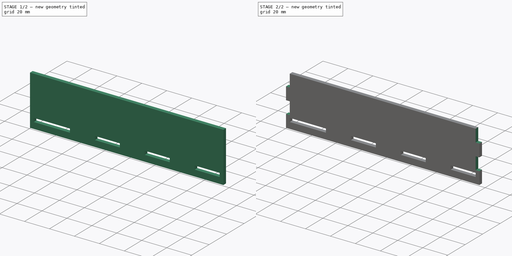
[diagram: build sequence overview — one tinted view per stage of 2, left to right]
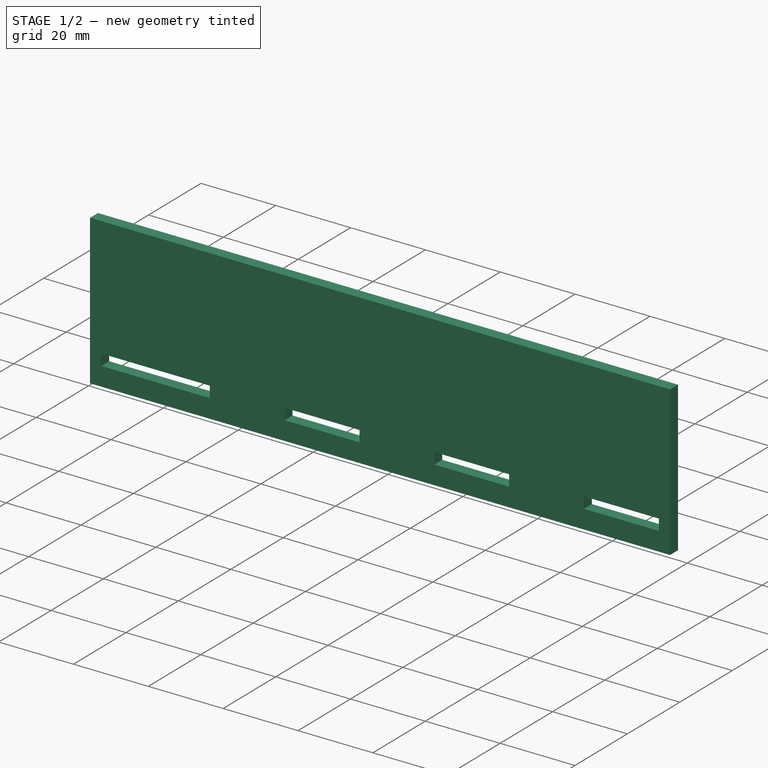
[diagram: stage 1 of 2 — iso view after this stage's code; geometry added in this stage tinted green]
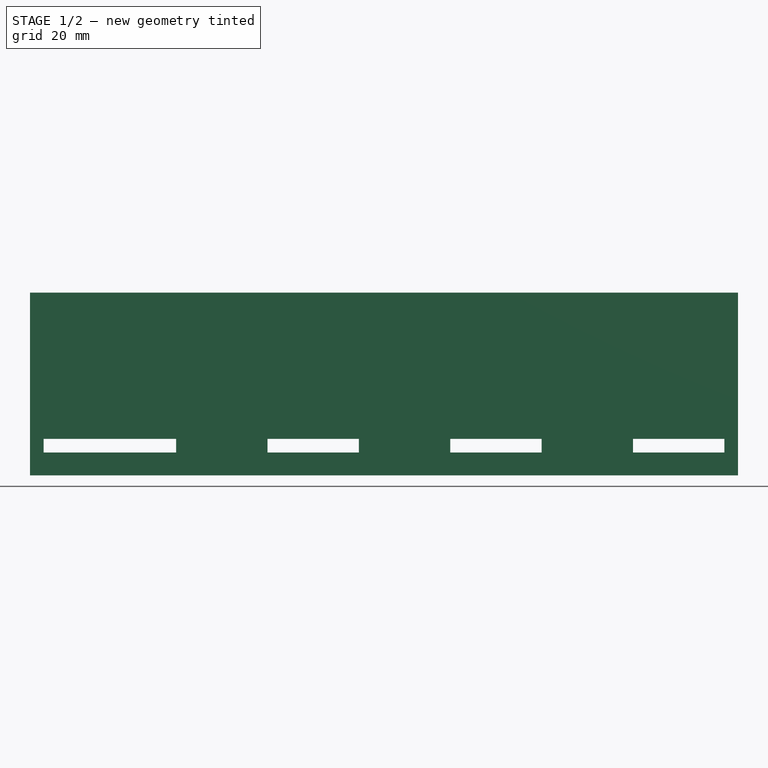
[diagram: stage 1 of 2 — front view after this stage's code; geometry added in this stage tinted green]
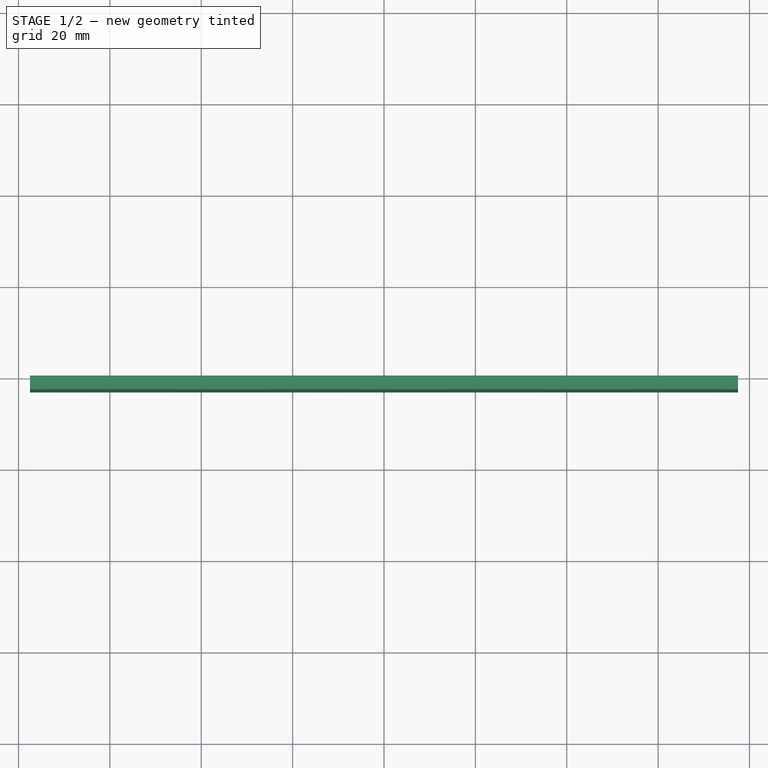
[diagram: stage 1 of 2 — top view after this stage's code; geometry added in this stage tinted green]
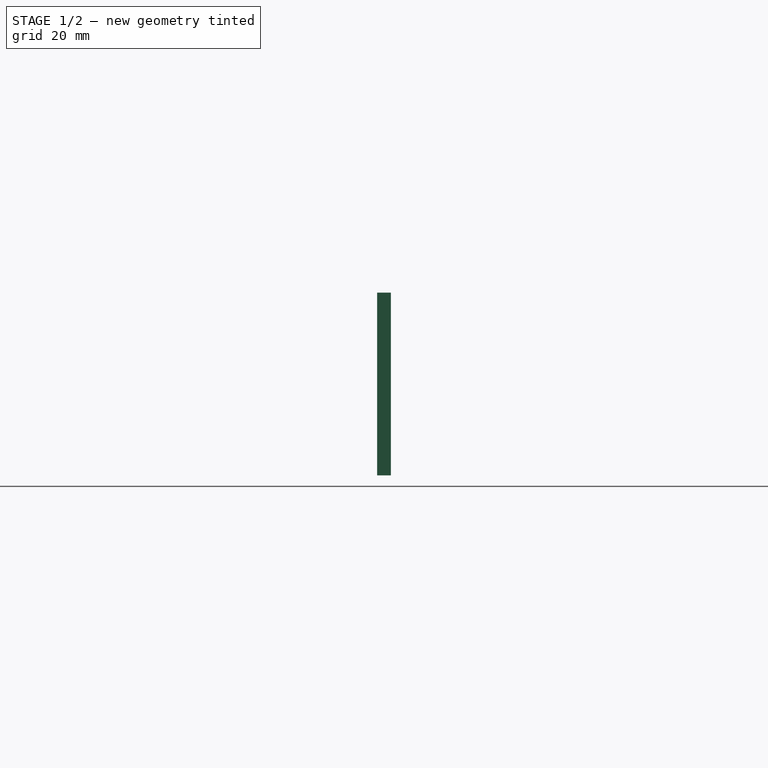
[diagram: stage 1 of 2 — right view after this stage's code; geometry added in this stage tinted green]
FCSTD DOCUMENT  (FreeCAD 0.19R24267 +148 (Git))
Label: BackDrawer
License: All rights reserved
LicenseURL: http://en.wikipedia.org/wiki/All_rights_reserved
objects: Sketcher::SketchObject×3, PartDesign::Pocket×2, PartDesign::Pad×1, PartDesign::Mirrored×1, PartDesign::Body×1
note: 11 computed .brp shape members not serialized (recipe doc carries the construction recipe); baked Part::Feature solids carry a one-line shape summary decoded from their .brp

FEATURE [Sketcher::SketchObject] Sketch
  FullyConstrained = true
  MapMode = 5
  Placement = pos=(0,0,0) rot=(1,0,0;1.5708rad)
  Support = -> [XZ_Plane]
  sketch-geometry (4):
    g0: LineSegment StartX=-77.5 StartY=-20 StartZ=0 EndX=77.5 EndY=-20 EndZ=0
    g1: LineSegment StartX=77.5 StartY=-20 StartZ=0 EndX=77.5 EndY=20 EndZ=0
    g2: LineSegment StartX=77.5 StartY=20 StartZ=0 EndX=-77.5 EndY=20 EndZ=0
    g3: LineSegment StartX=-77.5 StartY=20 StartZ=0 EndX=-77.5 EndY=-20 EndZ=0
  constraints (10):
    c: Coincident(g0,g1)
    c: Coincident(g1,g2)
    c: Coincident(g2,g3)
    c: Coincident(g3,g0)
    c: Horizontal(g0)
    c: Vertical(g3)
    c: Symmetric(g1,g2,g-2)
    c: Symmetric(g0,g1,g-1)
    c: Distance(g1) = 40
    c: DistanceX(g2,g2) = 155
FEATURE [PartDesign::Pad] Pad
  Direction = (1,1,1)
  Length = 3
  Length2 = 100
  Placement = pos=(0,0,0) rot=(1,0,0;1.5708rad)
  Profile = -> Sketch
  Refine = true
  Type = 0
FEATURE [Sketcher::SketchObject] Sketch001
  ExternalGeometry = -> [Pad]
  FullyConstrained = true
  MapMode = 5
  Placement = pos=(0,-3,2e-15) rot=(1,0,0;1.5708rad)
  Support = -> [Pad]
  sketch-geometry (18):
    g0: LineSegment StartX=54.5 StartY=-15 StartZ=0 EndX=74.5 EndY=-15 EndZ=0
    g1: LineSegment StartX=74.5 StartY=-15 StartZ=0 EndX=74.5 EndY=-12 EndZ=0
    g2: LineSegment StartX=74.5 StartY=-12 StartZ=0 EndX=54.5 EndY=-12 EndZ=0
    g3: LineSegment StartX=54.5 StartY=-12 StartZ=0 EndX=54.5 EndY=-15 EndZ=0
    g4: LineSegment StartX=14.5 StartY=-15 StartZ=0 EndX=34.5 EndY=-15 EndZ=0
    g5: LineSegment StartX=34.5 StartY=-15 StartZ=0 EndX=34.5 EndY=-12 EndZ=0
    g6: LineSegment StartX=34.5 StartY=-12 StartZ=0 EndX=14.5 EndY=-12 EndZ=0
    g7: LineSegment StartX=14.5 StartY=-12 StartZ=0 EndX=14.5 EndY=-15 EndZ=0
    g8: LineSegment StartX=54.5 StartY=-15 StartZ=0 EndX=14.5 EndY=-15 EndZ=0
    g9: LineSegment StartX=-25.5 StartY=-15 StartZ=0 EndX=-5.5 EndY=-15 EndZ=0
    g10: LineSegment StartX=-5.5 StartY=-15 StartZ=0 EndX=-5.5 EndY=-12 EndZ=0
    g11: LineSegment StartX=-5.5 StartY=-12 StartZ=0 EndX=-25.5 EndY=-12 EndZ=0
    g12: LineSegment StartX=-25.5 StartY=-12 StartZ=0 EndX=-25.5 EndY=-15 EndZ=0
    g13: LineSegment StartX=14.5 StartY=-15 StartZ=0 EndX=-25.5 EndY=-15 EndZ=0
    g14: LineSegment StartX=-74.5 StartY=-15 StartZ=0 EndX=-45.5 EndY=-15 EndZ=0
    g15: LineSegment StartX=-45.5 StartY=-15 StartZ=0 EndX=-45.5 EndY=-12 EndZ=0
    g16: LineSegment StartX=-45.5 StartY=-12 StartZ=0 EndX=-74.5 EndY=-12 EndZ=0
    g17: LineSegment StartX=-74.5 StartY=-12 StartZ=0 EndX=-74.5 EndY=-15 EndZ=0
  constraints (52):
    c: Coincident(g0,g1)
    c: Coincident(g1,g2)
    c: Coincident(g2,g3)
    c: Coincident(g3,g0)
    c: Horizontal(g0)
    c: Horizontal(g2)
    c: Vertical(g1)
    c: Vertical(g3)
    c: Distance(g2) = 20
    c: DistanceY(g3,g3) = 3
    c: DistanceY(g-3,g0) = 5
    c: DistanceX(g0,g-3) = 3
    c: Coincident(g4,g5)
    c: Coincident(g5,g6)
    c: Coincident(g6,g7)
    c: Coincident(g7,g4)
    c: Horizontal(g4)
    c: Horizontal(g6)
    c: Vertical(g5)
    c: Vertical(g7)
    c: Equal(g2,g6) = 20
    c: Equal(g3,g7) = 3
    c: Coincident(g0,g8)
    c: Coincident(g4,g8)
    c: Distance(g8) = 40
    c: Coincident(g9,g10)
    c: Coincident(g10,g11)
    c: Coincident(g11,g12)
    c: Coincident(g12,g9)
    c: Horizontal(g9)
    c: Horizontal(g11)
    c: Vertical(g10)
    c: Vertical(g12)
    c: Equal(g2,g11) = 20
    c: Equal(g3,g12) = 3
    c: Coincident(g4,g13)
    c: Coincident(g9,g13)
    c: Equal(g8,g13)
    c: Parallel(g13,g8)
    c: Horizontal(g8)
    c: Coincident(g14,g15)
    c: Coincident(g15,g16)
    c: Coincident(g16,g17)
    c: Coincident(g17,g14)
    c: Horizontal(g14)
    c: Horizontal(g16)
    c: Vertical(g15)
    c: Vertical(g17)
    c: Equal(g15,g10)
    c: PointOnObject(g14,g13)
    c: DistanceX(g16,g16) = 29
    c: DistanceX(g14,g9) = 40
FEATURE [PartDesign::Pocket] Pocket  label="BottomCrenel"
  BaseFeature = -> Pad
  Length = 5
  Length2 = 100
  Placement = pos=(0,0,0) rot=(1,0,0;1.5708rad)
  Profile = -> Sketch001
  Refine = true
  Type = 1
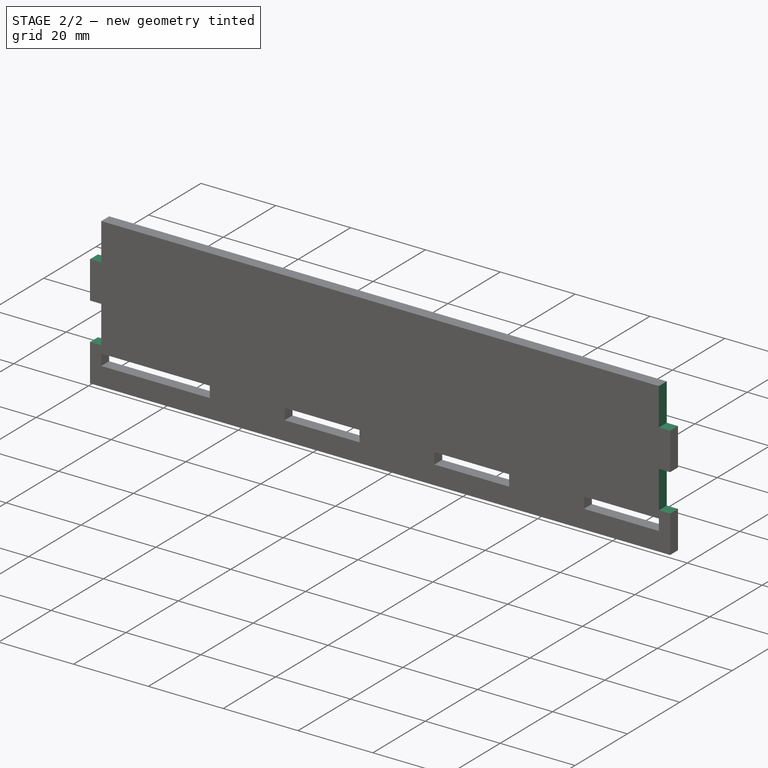
[diagram: stage 2 of 2 — iso view after this stage's code; geometry added in this stage tinted green]
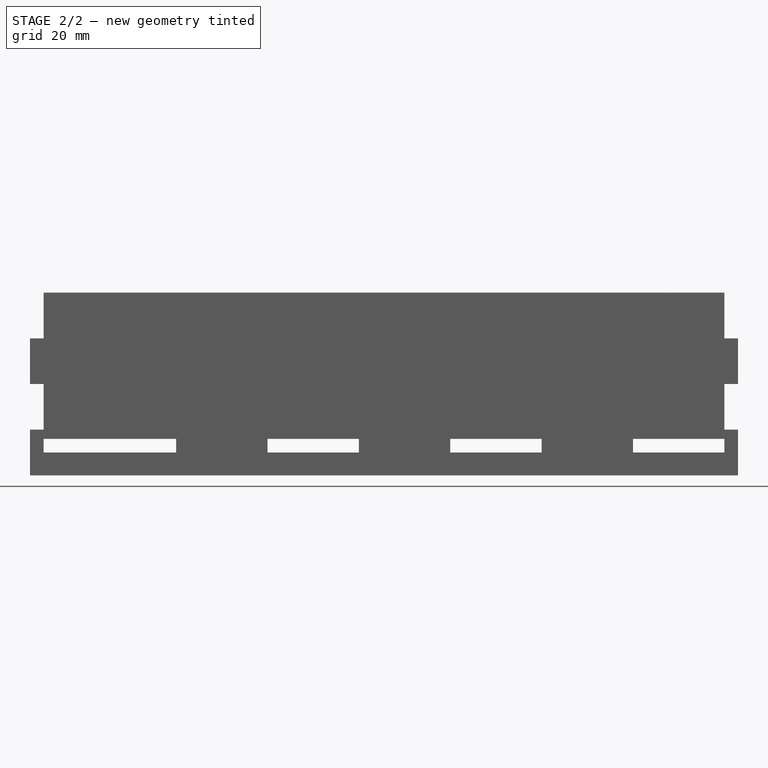
[diagram: stage 2 of 2 — front view after this stage's code; geometry added in this stage tinted green]
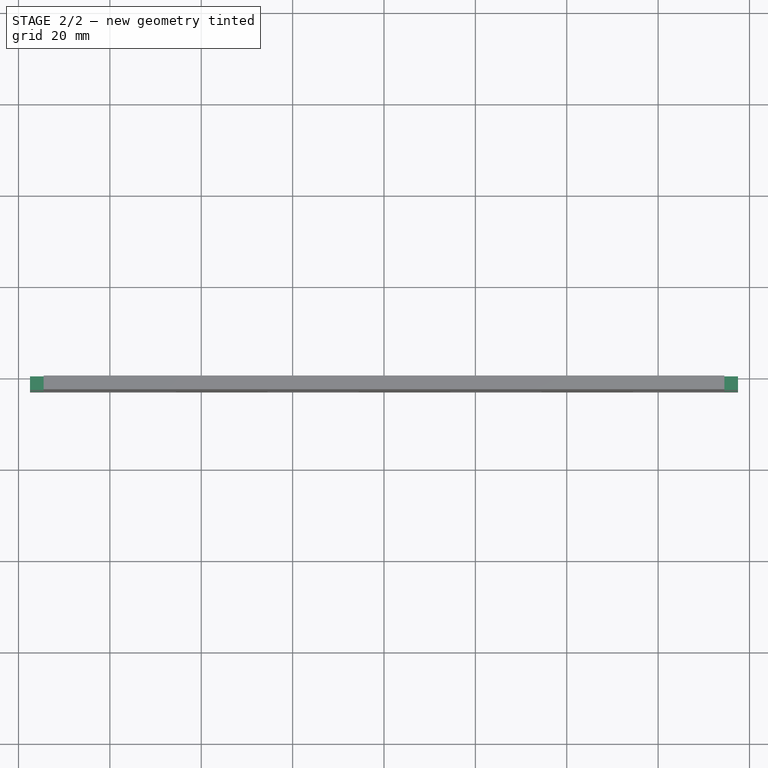
[diagram: stage 2 of 2 — top view after this stage's code; geometry added in this stage tinted green]
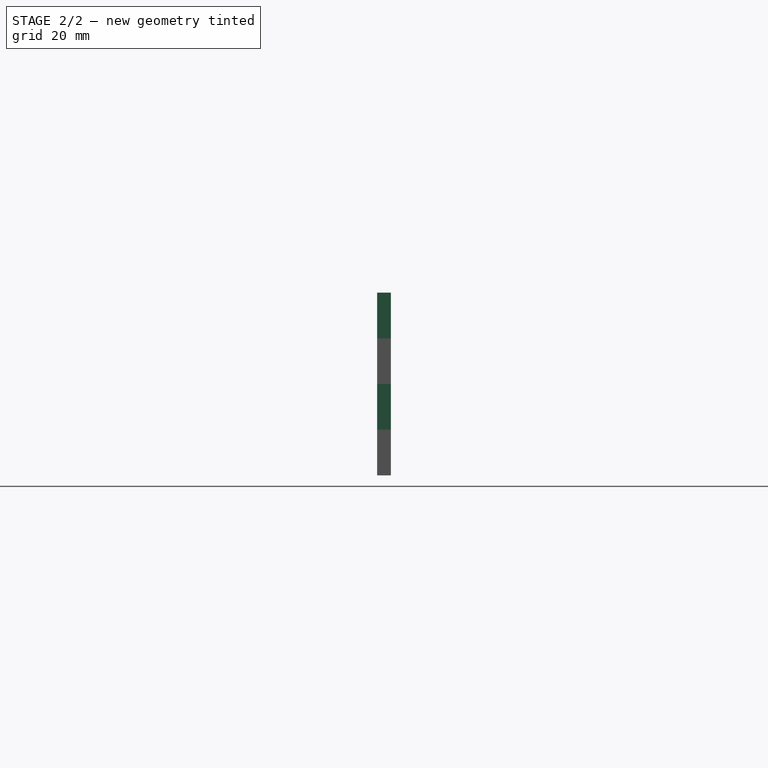
[diagram: stage 2 of 2 — right view after this stage's code; geometry added in this stage tinted green]
FEATURE [Sketcher::SketchObject] Sketch002
  ExternalGeometry = -> [Pocket]
  FullyConstrained = true
  MapMode = 5
  Placement = pos=(0,-3,3.3e-15) rot=(1,0,0;1.5708rad)
  Support = -> [Pocket]
  sketch-geometry (9):
    g0: LineSegment StartX=-77.5 StartY=20 StartZ=0 EndX=-74.5 EndY=20 EndZ=0
    g1: LineSegment StartX=-74.5 StartY=20 StartZ=0 EndX=-74.5 EndY=10 EndZ=0
    g2: LineSegment StartX=-74.5 StartY=10 StartZ=0 EndX=-77.5 EndY=10 EndZ=0
    g3: LineSegment StartX=-77.5 StartY=10 StartZ=0 EndX=-77.5 EndY=20 EndZ=0
    g4: LineSegment StartX=-77.5 StartY=-3.6e-15 StartZ=0 EndX=-74.5 EndY=-3.6e-15 EndZ=0
    g5: LineSegment StartX=-74.5 StartY=-3.6e-15 StartZ=0 EndX=-74.5 EndY=-10 EndZ=0
    g6: LineSegment StartX=-74.5 StartY=-10 StartZ=0 EndX=-77.5 EndY=-10 EndZ=0
    g7: LineSegment StartX=-77.5 StartY=-10 StartZ=0 EndX=-77.5 EndY=-3.6e-15 EndZ=0
    g8: LineSegment StartX=-77.5 StartY=20 StartZ=0 EndX=-77.5 EndY=-3.6e-15 EndZ=0
  constraints (25):
    c: Coincident(g0,g1)
    c: Coincident(g1,g2)
    c: Coincident(g2,g3)
    c: Coincident(g3,g0)
    c: Horizontal(g0)
    c: Horizontal(g2)
    c: Vertical(g1)
    c: Vertical(g3)
    c: Coincident(g0,g-3)
    c: Distance(g0) = 3
    c: Distance(g1) = 10
    c: Coincident(g4,g5)
    c: Coincident(g5,g6)
    c: Coincident(g6,g7)
    c: Coincident(g7,g4)
    c: Horizontal(g4)
    c: Horizontal(g6)
    c: Vertical(g5)
    c: Vertical(g7)
    c: Equal(g0,g4) = 3
    c: Equal(g1,g5) = 10
    c: Coincident(g0,g8)
    c: Coincident(g4,g8)
    c: Distance(g8) = 20
    c: Vertical(g8)
FEATURE [PartDesign::Pocket] Pocket001  label="LeftCrenel"
  BaseFeature = -> Pocket
  Length = 5
  Length2 = 100
  Placement = pos=(0,0,0) rot=(1,0,0;1.5708rad)
  Profile = -> Sketch002
  Refine = true
  Type = 1
FEATURE [PartDesign::Mirrored] Mirrored  label="RightCrenel"
  BaseFeature = -> Pocket001
  MirrorPlane = -> Sketch002 [V_Axis]
  Originals = -> [Pocket001]
  Placement = pos=(0,0,0) rot=(1,0,0;1.5708rad)
  Refine = true
FEATURE [PartDesign::Body] Body
  Group = -> [Sketch,Pad,Sketch001,Pocket,Sketch002,Pocket001,Mirrored]
  Origin = -> Origin
  Tip = -> Mirrored
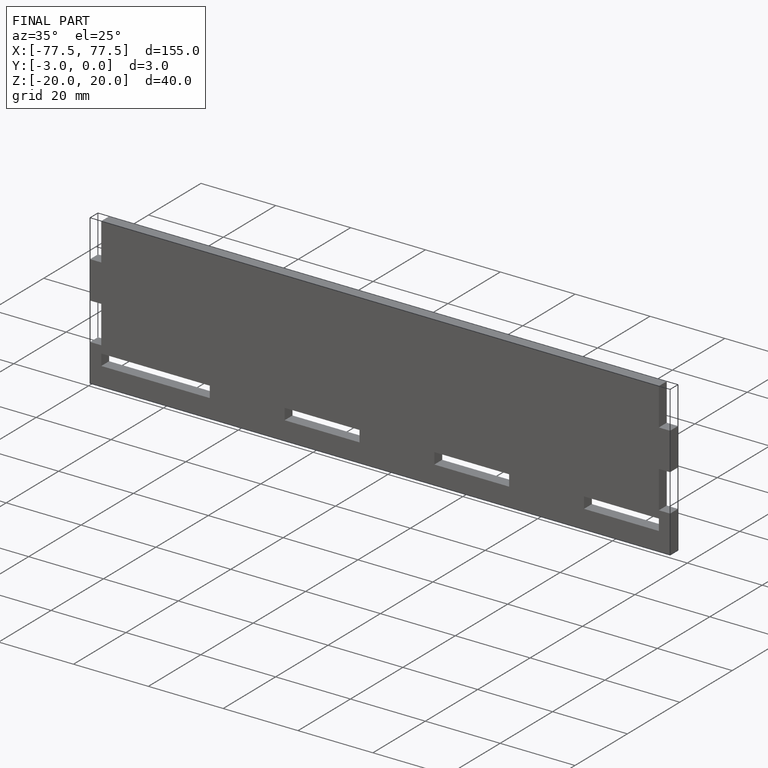
[diagram: finished part — iso view with bounding-box wireframe]
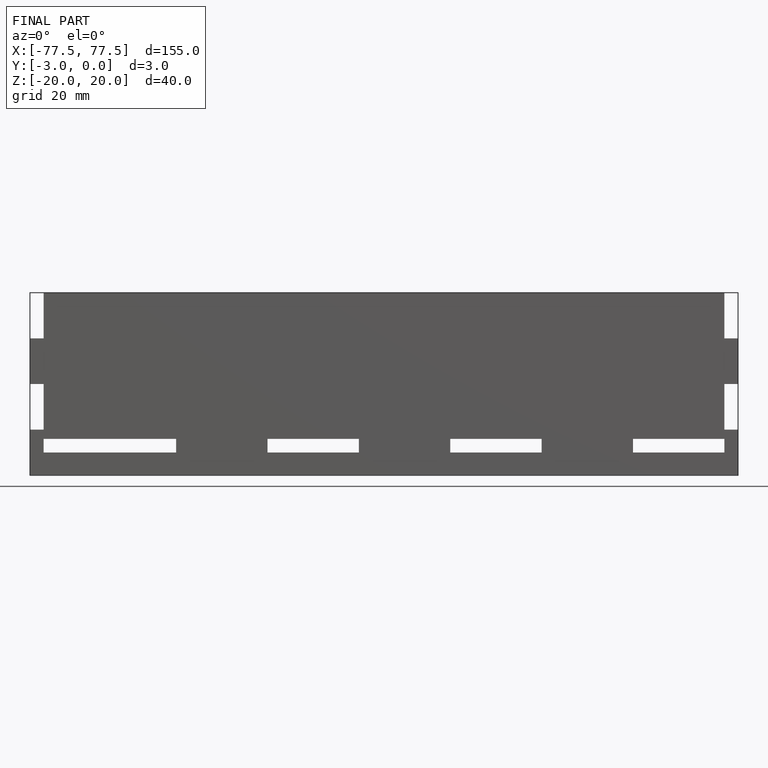
[diagram: finished part — front view with bounding-box wireframe]
